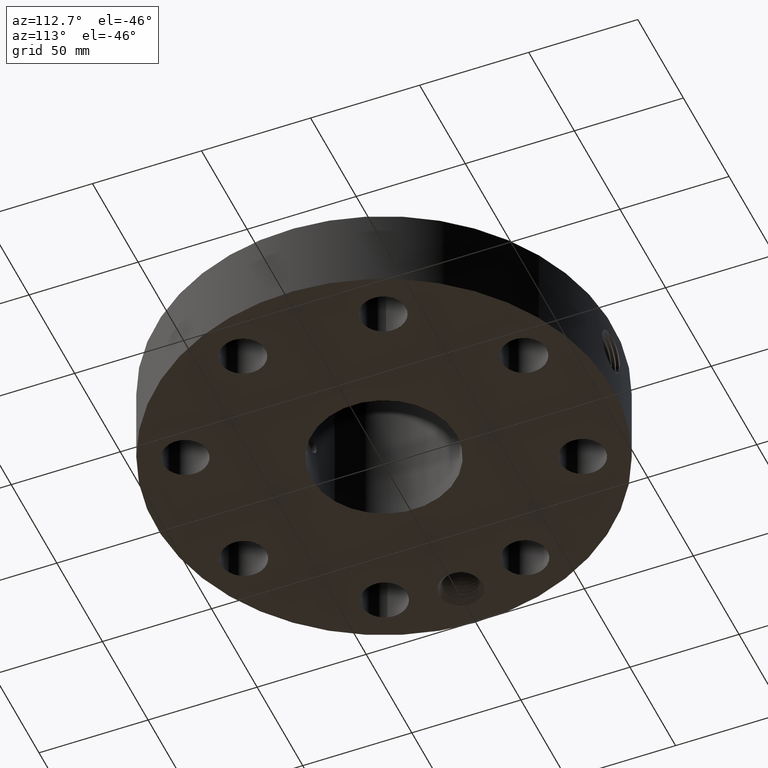
[diagram: clean part render]
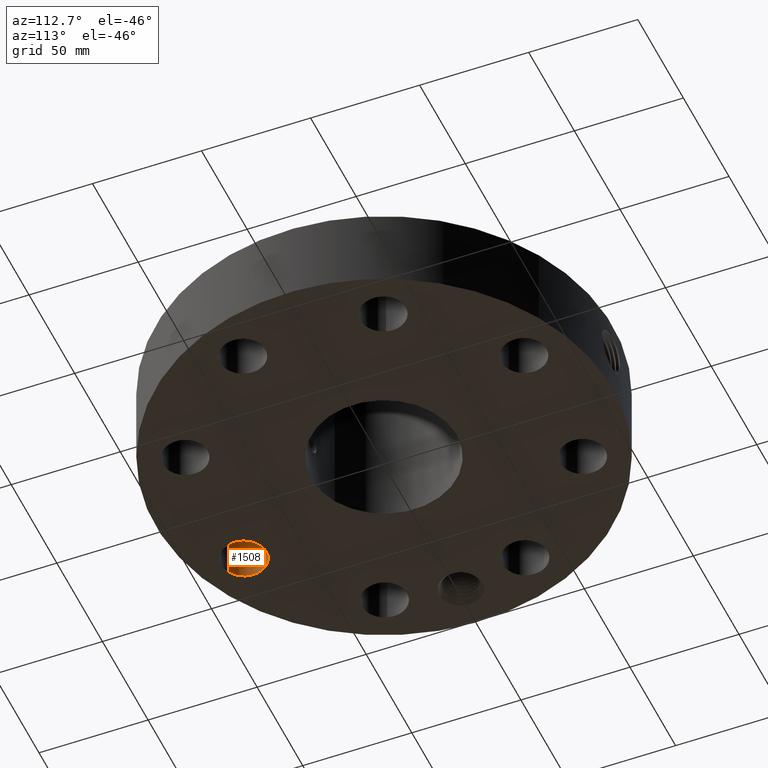
[diagram: same view with one face highlighted and labeled with its STEP entity id]
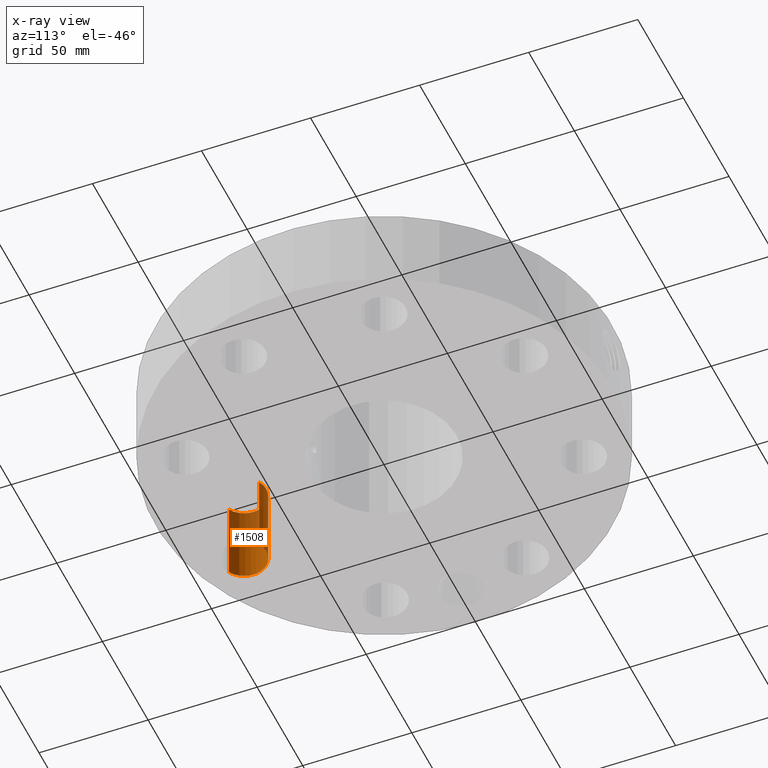
[diagram: x-ray of the same camera — body ghosted, the highlighted face saturated]
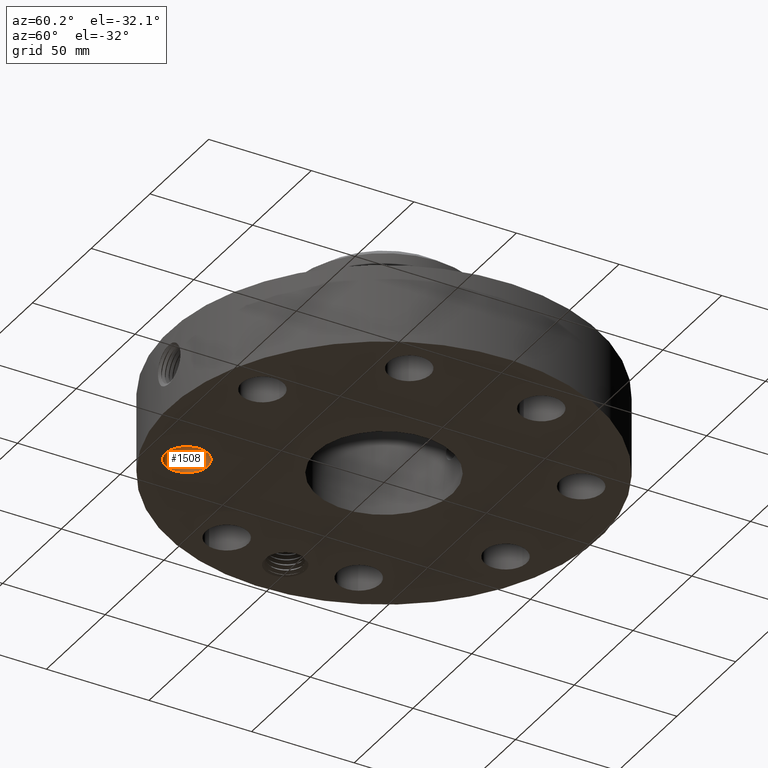
[diagram: same view with one face highlighted and labeled with its STEP entity id]
A machine part, auxiliary view. The second image highlights one B-rep face of the part: STEP entity #1508.
The next image is the same camera in x-ray: the body ghosted, the highlighted face saturated — about 37% of this face is hidden behind the body in this view.
A second angle (auxiliary view) of the same face is appended — the face is thin or edge-on in the first view.
In plain terms, the highlighted cylindrical surface (edge-blend (fillet) strip) has radius 10.287 mm, axis along (0, -0, -1).
Its self-contained STEP definition (entity closure, byte-faithful):
#287=AXIS2_PLACEMENT_3D('Circle Axis2P3D',#285,#286,$) ;
#595=AXIS2_PLACEMENT_3D('Circle Axis2P3D',#593,#594,$) ;
#1483=AXIS2_PLACEMENT_3D('Cylinder Axis2P3D',#1480,#1481,#1482) ;
#280=CARTESIAN_POINT('Vertex',(-1.072514818,-2.70262031506,0.0600000000002)) ;
#282=CARTESIAN_POINT('Vertex',(-1.46084950427,-3.41346219019,0.0600000000002)) ;
#285=CARTESIAN_POINT('Axis2P3D Location',(-1.26668216113,-3.05804125262,0.0600000000002)) ;
#593=CARTESIAN_POINT('Axis2P3D Location',(-1.26668216113,-3.05804125262,1.56000000001)) ;
#597=CARTESIAN_POINT('Vertex',(-1.46084950427,-3.41346219019,1.56000000001)) ;
#599=CARTESIAN_POINT('Vertex',(-1.072514818,-2.70262031506,1.56000000001)) ;
#1480=CARTESIAN_POINT('Axis2P3D Location',(-1.26668216113,-3.05804125262,1.55606299213)) ;
#1485=CARTESIAN_POINT('Line Origine',(-1.072514818,-2.70262031506,0.810000000003)) ;
#1490=CARTESIAN_POINT('Line Origine',(-1.46084950427,-3.41346219019,0.810000000003)) ;
#286=DIRECTION('Axis2P3D Direction',(0.,0.,-0.0393700787402)) ;
#594=DIRECTION('Axis2P3D Direction',(0.,0.,-0.0393700787402)) ;
#1481=DIRECTION('Axis2P3D Direction',(0.,-0.,-0.0393700787402)) ;
#1482=DIRECTION('Axis2P3D XDirection',(-0.0188750212049,-0.0345504945626,0.)) ;
#1486=DIRECTION('Vector Direction',(0.,0.,-0.0393700787402)) ;
#1491=DIRECTION('Vector Direction',(0.,0.,-0.0393700787402)) ;
#1487=VECTOR('Line Direction',#1486,0.0393700787402) ;
#1492=VECTOR('Line Direction',#1491,0.0393700787402) ;
#1503=ORIENTED_EDGE('',*,*,#1494,.F.) ;
#1504=ORIENTED_EDGE('',*,*,#289,.T.) ;
#1505=ORIENTED_EDGE('',*,*,#1489,.T.) ;
#1506=ORIENTED_EDGE('',*,*,#601,.F.) ;
#1508=ADVANCED_FACE('PartBody',(#1507),#1484,.F.) ;
#288=CIRCLE('generated circle',#287,0.405000000002) ;
#596=CIRCLE('generated circle',#595,0.405000000002) ;
#1484=CYLINDRICAL_SURFACE('generated cylinder',#1483,0.405000000002) ;
#289=EDGE_CURVE('',#283,#281,#288,.T.) ;
#601=EDGE_CURVE('',#598,#600,#596,.T.) ;
#1489=EDGE_CURVE('',#281,#600,#1488,.F.) ;
#1494=EDGE_CURVE('',#283,#598,#1493,.F.) ;
#1502=EDGE_LOOP('',(#1503,#1504,#1505,#1506)) ;
#1507=FACE_OUTER_BOUND('',#1502,.T.) ;
#1488=LINE('Line',#1485,#1487) ;
#1493=LINE('Line',#1490,#1492) ;
#281=VERTEX_POINT('',#280) ;
#283=VERTEX_POINT('',#282) ;
#598=VERTEX_POINT('',#597) ;
#600=VERTEX_POINT('',#599) ;